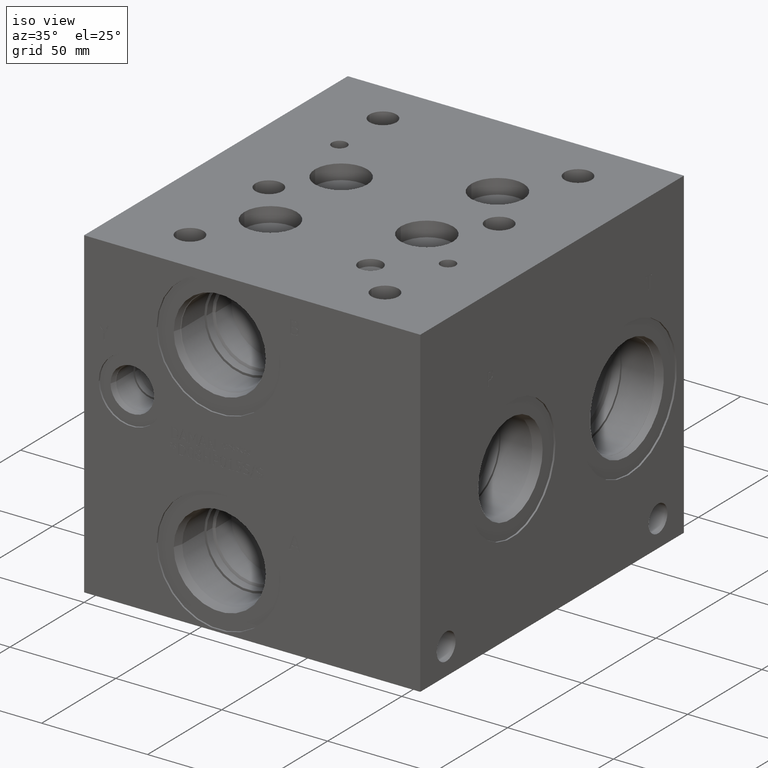
[diagram: clean part render]
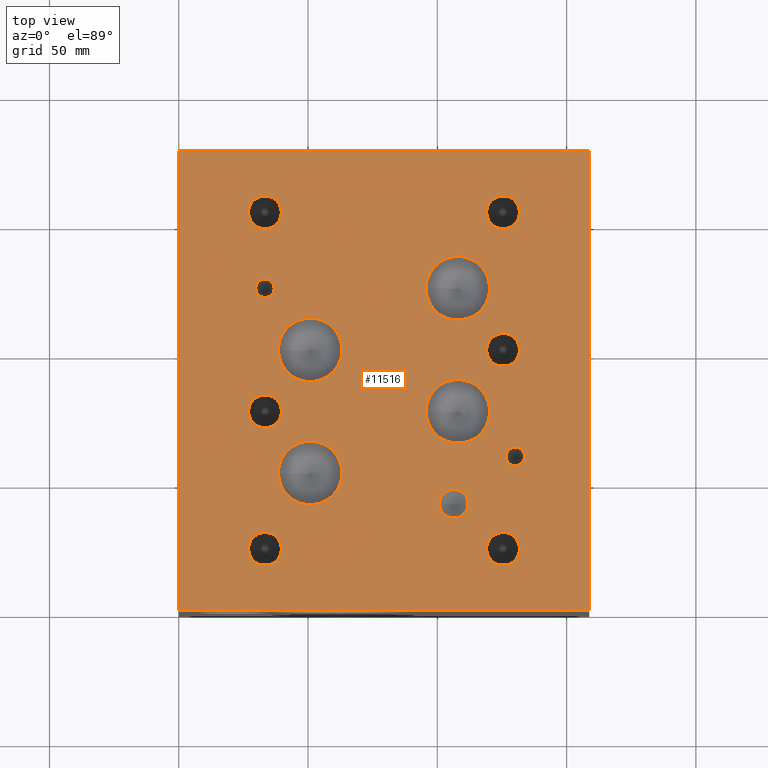
[diagram: tour spotlight — one face highlighted and labeled with its STEP entity id]
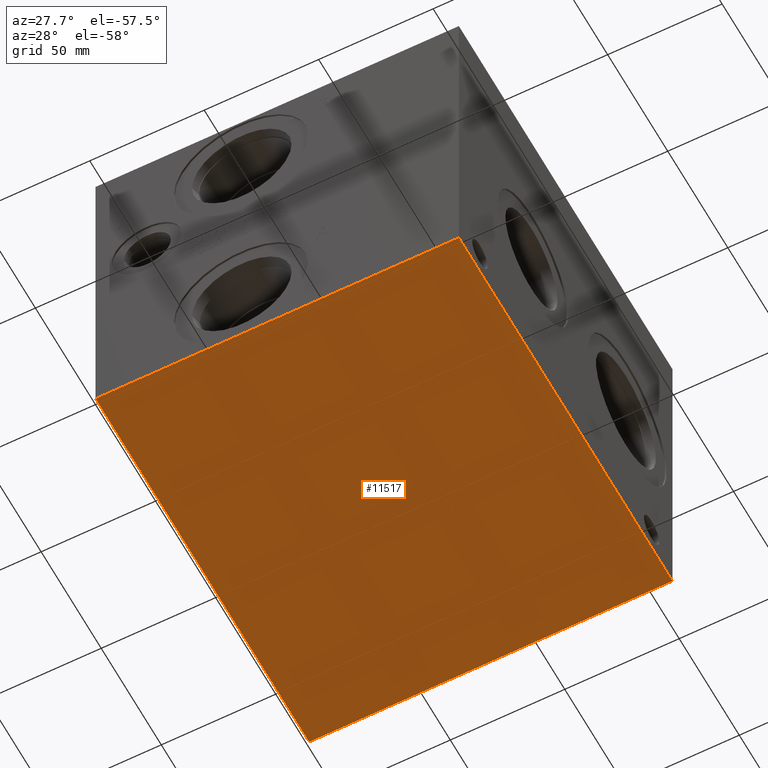
[diagram: tour spotlight — one face highlighted and labeled with its STEP entity id]
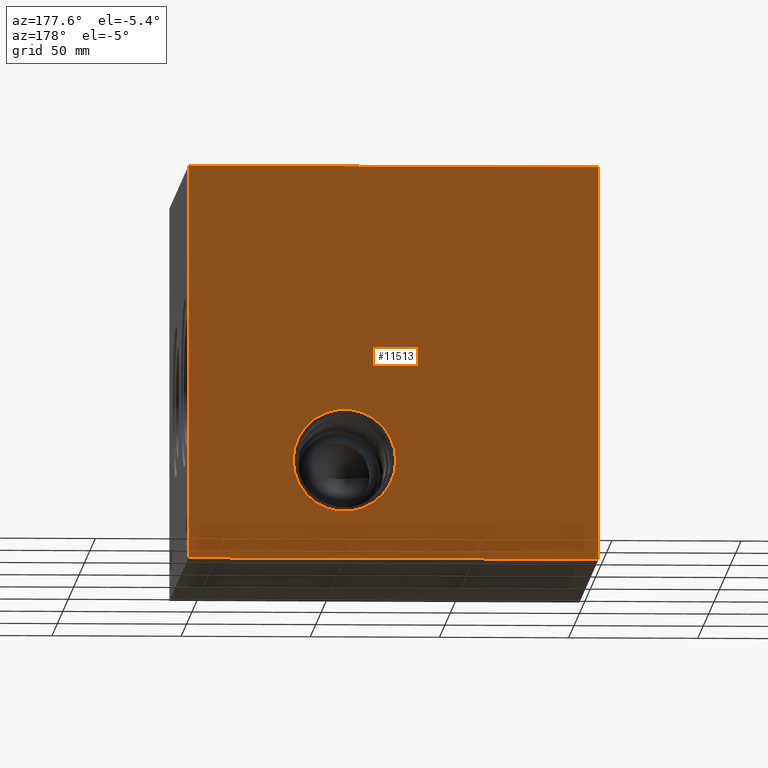
[diagram: tour spotlight — one face highlighted and labeled with its STEP entity id]
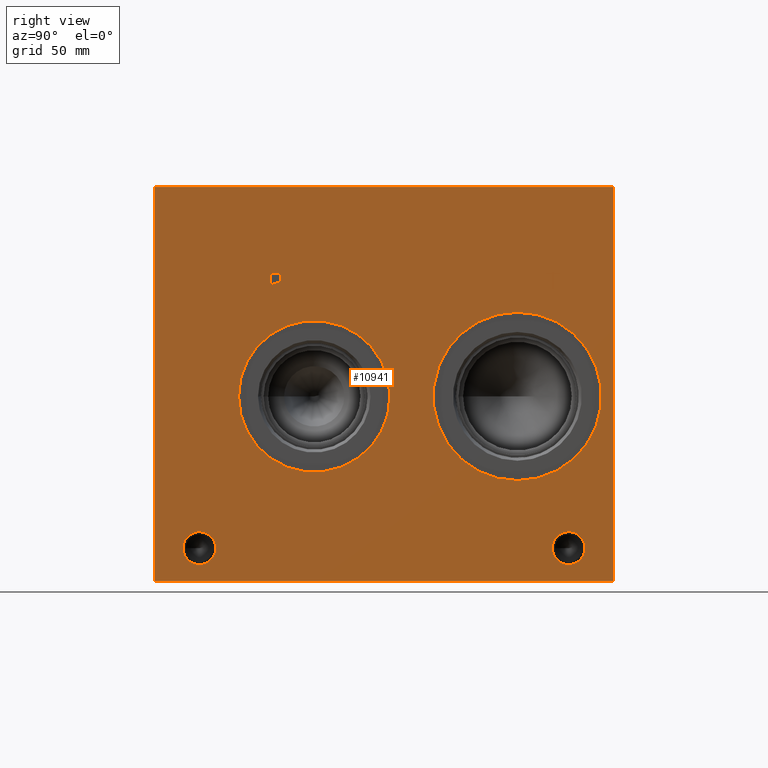
[diagram: tour spotlight — one face highlighted and labeled with its STEP entity id]
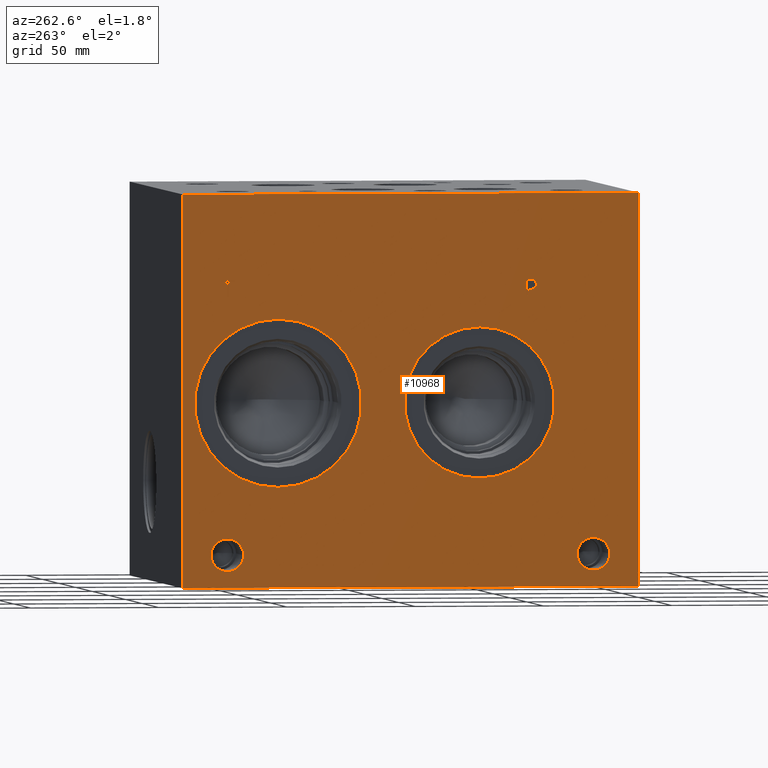
[diagram: tour spotlight — one face highlighted and labeled with its STEP entity id]
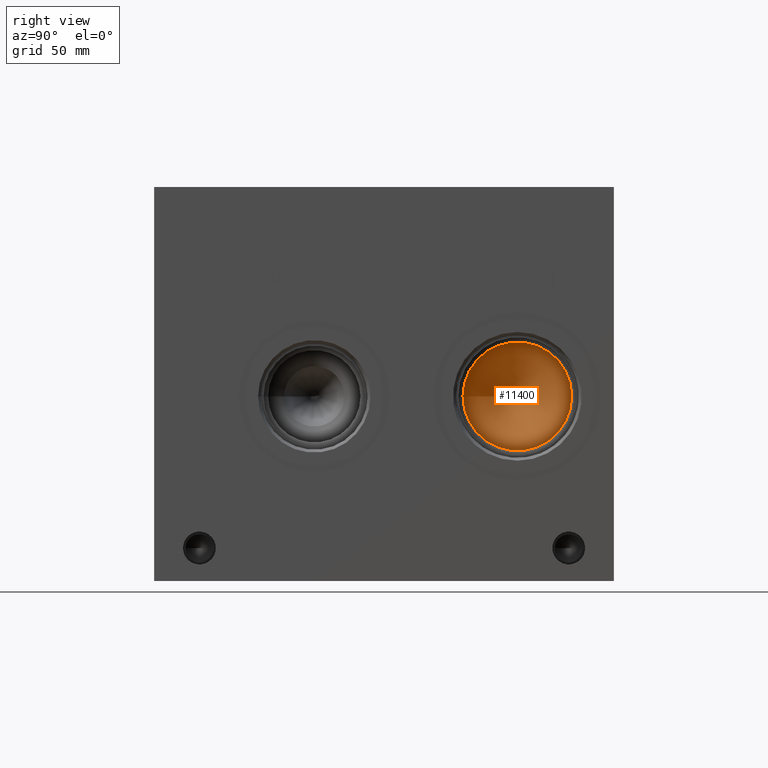
[diagram: tour spotlight — one face highlighted and labeled with its STEP entity id]
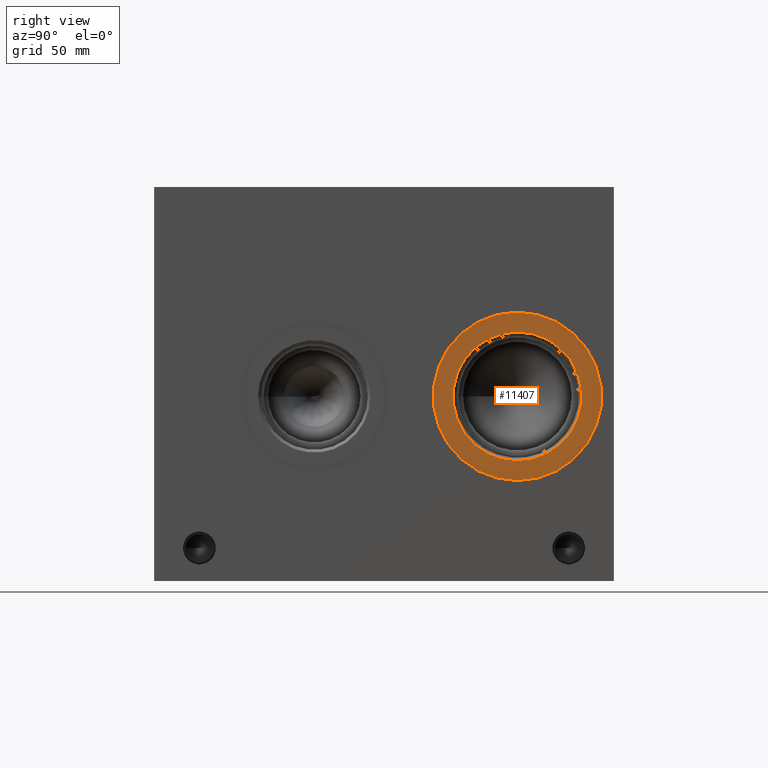
[diagram: tour spotlight — one face highlighted and labeled with its STEP entity id]
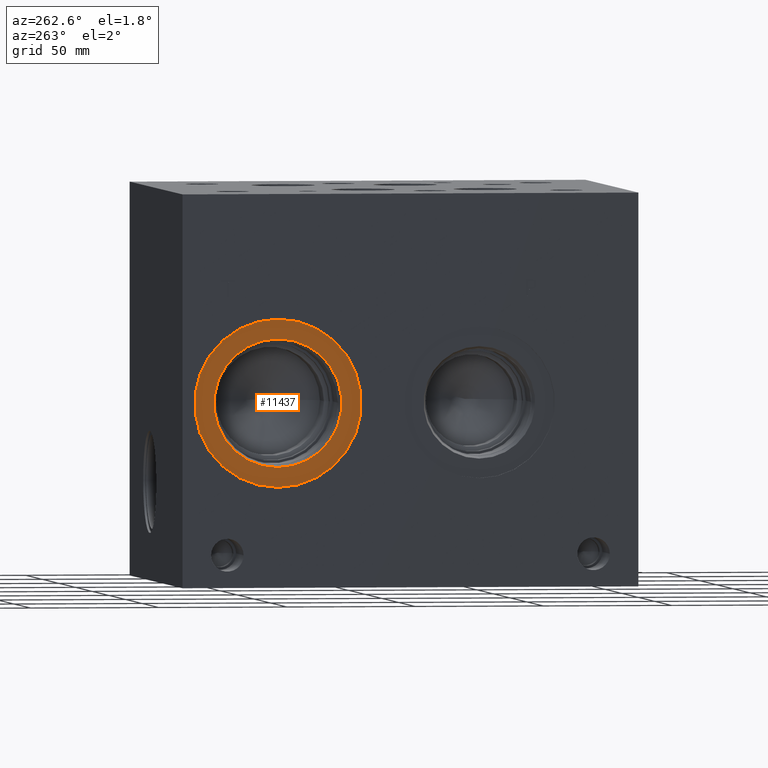
[diagram: tour spotlight — one face highlighted and labeled with its STEP entity id]
A machine part: a face-by-face anatomy tour. The part has 594 B-rep faces; the first image is the clean iso view, then the 8 largest visible faces are spotlighted one at a time (largest first), each with its STEP entity span.

Face 1 — top view, entity #11516. In plain terms, the highlighted planar face has unit normal (0, 0, 1).
Definition (entity closure, byte-faithful):
#316=CIRCLE('',#12127,5.55625);
#317=CIRCLE('',#12128,5.55625);
#320=CIRCLE('',#12133,12.3063);
#321=CIRCLE('',#12134,12.3063);
#324=CIRCLE('',#12139,12.3063);
#325=CIRCLE('',#12140,12.3063);
#328=CIRCLE('',#12145,12.3063);
#329=CIRCLE('',#12146,12.3063);
#332=CIRCLE('',#12151,12.3063);
#333=CIRCLE('',#12152,12.3063);
#336=CIRCLE('',#12157,3.5687);
#337=CIRCLE('',#12158,3.5687);
#340=CIRCLE('',#12163,3.5687);
#341=CIRCLE('',#12164,3.5687);
#347=CIRCLE('',#12173,6.35);
#348=CIRCLE('',#12174,6.35);
#354=CIRCLE('',#12184,6.35);
#355=CIRCLE('',#12185,6.35);
#361=CIRCLE('',#12195,6.35);
#362=CIRCLE('',#12196,6.35);
#368=CIRCLE('',#12206,6.35);
#369=CIRCLE('',#12207,6.35);
#375=CIRCLE('',#12217,6.35);
#376=CIRCLE('',#12218,6.35);
#382=CIRCLE('',#12228,6.35);
#383=CIRCLE('',#12229,6.35);
#465=FACE_BOUND('',#2081,.T.);
#466=FACE_BOUND('',#2082,.T.);
#467=FACE_BOUND('',#2083,.T.);
#468=FACE_BOUND('',#2084,.T.);
#469=FACE_BOUND('',#2085,.T.);
#470=FACE_BOUND('',#2086,.T.);
#471=FACE_BOUND('',#2087,.T.);
#472=FACE_BOUND('',#2088,.T.);
#473=FACE_BOUND('',#2089,.T.);
#474=FACE_BOUND('',#2090,.T.);
#475=FACE_BOUND('',#2091,.T.);
#476=FACE_BOUND('',#2092,.T.);
#477=FACE_BOUND('',#2093,.T.);
#811=PLANE('',#12235);
#1405=FACE_OUTER_BOUND('',#2080,.T.);
#2080=EDGE_LOOP('',(#10315,#10316,#10317,#10318));
#2081=EDGE_LOOP('',(#10319,#10320));
#2082=EDGE_LOOP('',(#10321,#10322));
#2083=EDGE_LOOP('',(#10323,#10324));
#2084=EDGE_LOOP('',(#10325,#10326));
#2085=EDGE_LOOP('',(#10327,#10328));
#2086=EDGE_LOOP('',(#10329,#10330));
#2087=EDGE_LOOP('',(#10331,#10332));
#2088=EDGE_LOOP('',(#10333,#10334));
#2089=EDGE_LOOP('',(#10335,#10336));
#2090=EDGE_LOOP('',(#10337,#10338));
#2091=EDGE_LOOP('',(#10339,#10340));
#2092=EDGE_LOOP('',(#10341,#10342));
#2093=EDGE_LOOP('',(#10343,#10344));
#2129=LINE('',#14909,#3180);
#2189=LINE('',#15184,#3240);
#2546=LINE('',#17710,#3597);
#3145=LINE('',#19833,#4196);
#3180=VECTOR('',#12293,10.);
#3240=VECTOR('',#12407,10.);
#3597=VECTOR('',#12974,10.);
#4196=VECTOR('',#14691,10.);
#4517=VERTEX_POINT('',#14906);
#4518=VERTEX_POINT('',#14908);
#4577=VERTEX_POINT('',#15181);
#4578=VERTEX_POINT('',#15183);
#5496=VERTEX_POINT('',#19615);
#5497=VERTEX_POINT('',#19616);
#5501=VERTEX_POINT('',#19628);
#5502=VERTEX_POINT('',#19629);
#5506=VERTEX_POINT('',#19641);
#5507=VERTEX_POINT('',#19642);
#5511=VERTEX_POINT('',#19654);
#5512=VERTEX_POINT('',#19655);
#5516=VERTEX_POINT('',#19667);
#5517=VERTEX_POINT('',#19668);
#5521=VERTEX_POINT('',#19680);
#5522=VERTEX_POINT('',#19681);
#5526=VERTEX_POINT('',#19693);
#5527=VERTEX_POINT('',#19694);
#5534=VERTEX_POINT('',#19713);
#5535=VERTEX_POINT('',#19714);
#5542=VERTEX_POINT('',#19735);
#5543=VERTEX_POINT('',#19736);
#5550=VERTEX_POINT('',#19757);
#5551=VERTEX_POINT('',#19758);
#5558=VERTEX_POINT('',#19779);
#5559=VERTEX_POINT('',#19780);
#5566=VERTEX_POINT('',#19801);
#5567=VERTEX_POINT('',#19802);
#5574=VERTEX_POINT('',#19823);
#5575=VERTEX_POINT('',#19824);
#5626=EDGE_CURVE('',#4518,#4517,#2129,.T.);
#5710=EDGE_CURVE('',#4578,#4577,#2189,.T.);
#6285=EDGE_CURVE('',#4577,#4518,#2546,.T.);
#7066=EDGE_CURVE('',#5496,#5497,#316,.T.);
#7067=EDGE_CURVE('',#5497,#5496,#317,.T.);
#7072=EDGE_CURVE('',#5501,#5502,#320,.T.);
#7073=EDGE_CURVE('',#5502,#5501,#321,.T.);
#7078=EDGE_CURVE('',#5506,#5507,#324,.T.);
#7079=EDGE_CURVE('',#5507,#5506,#325,.T.);
#7084=EDGE_CURVE('',#5511,#5512,#328,.T.);
#7085=EDGE_CURVE('',#5512,#5511,#329,.T.);
#7090=EDGE_CURVE('',#5516,#5517,#332,.T.);
#7091=EDGE_CURVE('',#5517,#5516,#333,.T.);
#7096=EDGE_CURVE('',#5521,#5522,#336,.T.);
#7097=EDGE_CURVE('',#5522,#5521,#337,.T.);
#7102=EDGE_CURVE('',#5526,#5527,#340,.T.);
#7103=EDGE_CURVE('',#5527,#5526,#341,.T.);
#7111=EDGE_CURVE('',#5534,#5535,#347,.T.);
#7112=EDGE_CURVE('',#5535,#5534,#348,.T.);
#7121=EDGE_CURVE('',#5542,#5543,#354,.T.);
#7122=EDGE_CURVE('',#5543,#5542,#355,.T.);
#7131=EDGE_CURVE('',#5550,#5551,#361,.T.);
#7132=EDGE_CURVE('',#5551,#5550,#362,.T.);
#7141=EDGE_CURVE('',#5558,#5559,#368,.T.);
#7142=EDGE_CURVE('',#5559,#5558,#369,.T.);
#7151=EDGE_CURVE('',#5566,#5567,#375,.T.);
#7152=EDGE_CURVE('',#5567,#5566,#376,.T.);
#7161=EDGE_CURVE('',#5574,#5575,#382,.T.);
#7162=EDGE_CURVE('',#5575,#5574,#383,.T.);
#7166=EDGE_CURVE('',#4517,#4578,#3145,.T.);
#10315=ORIENTED_EDGE('',*,*,#6285,.T.);
#10316=ORIENTED_EDGE('',*,*,#5626,.T.);
#10317=ORIENTED_EDGE('',*,*,#7166,.T.);
#10318=ORIENTED_EDGE('',*,*,#5710,.T.);
#10319=ORIENTED_EDGE('',*,*,#7066,.T.);
#10320=ORIENTED_EDGE('',*,*,#7067,.T.);
#10321=ORIENTED_EDGE('',*,*,#7072,.T.);
#10322=ORIENTED_EDGE('',*,*,#7073,.T.);
#10323=ORIENTED_EDGE('',*,*,#7078,.T.);
#10324=ORIENTED_EDGE('',*,*,#7079,.T.);
#10325=ORIENTED_EDGE('',*,*,#7084,.T.);
#10326=ORIENTED_EDGE('',*,*,#7085,.T.);
#10327=ORIENTED_EDGE('',*,*,#7090,.T.);
#10328=ORIENTED_EDGE('',*,*,#7091,.T.);
#10329=ORIENTED_EDGE('',*,*,#7096,.T.);
#10330=ORIENTED_EDGE('',*,*,#7097,.T.);
#10331=ORIENTED_EDGE('',*,*,#7102,.T.);
#10332=ORIENTED_EDGE('',*,*,#7103,.T.);
#10333=ORIENTED_EDGE('',*,*,#7111,.T.);
#10334=ORIENTED_EDGE('',*,*,#7112,.T.);
#10335=ORIENTED_EDGE('',*,*,#7121,.T.);
#10336=ORIENTED_EDGE('',*,*,#7122,.T.);
#10337=ORIENTED_EDGE('',*,*,#7131,.T.);
#10338=ORIENTED_EDGE('',*,*,#7132,.T.);
#10339=ORIENTED_EDGE('',*,*,#7141,.T.);
#10340=ORIENTED_EDGE('',*,*,#7142,.T.);
#10341=ORIENTED_EDGE('',*,*,#7151,.T.);
#10342=ORIENTED_EDGE('',*,*,#7152,.T.);
#10343=ORIENTED_EDGE('',*,*,#7161,.T.);
#10344=ORIENTED_EDGE('',*,*,#7162,.T.);
#11516=ADVANCED_FACE('',(#1405,#465,#466,#467,#468,#469,#470,#471,#472,
#473,#474,#475,#476,#477),#811,.T.);
#12127=AXIS2_PLACEMENT_3D('',#19617,#14447,#14448);
#12128=AXIS2_PLACEMENT_3D('',#19618,#14449,#14450);
#12133=AXIS2_PLACEMENT_3D('',#19630,#14461,#14462);
#12134=AXIS2_PLACEMENT_3D('',#19631,#14463,#14464);
#12139=AXIS2_PLACEMENT_3D('',#19643,#14475,#14476);
#12140=AXIS2_PLACEMENT_3D('',#19644,#14477,#14478);
#12145=AXIS2_PLACEMENT_3D('',#19656,#14489,#14490);
#12146=AXIS2_PLACEMENT_3D('',#19657,#14491,#14492);
#12151=AXIS2_PLACEMENT_3D('',#19669,#14503,#14504);
#12152=AXIS2_PLACEMENT_3D('',#19670,#14505,#14506);
#12157=AXIS2_PLACEMENT_3D('',#19682,#14517,#14518);
#12158=AXIS2_PLACEMENT_3D('',#19683,#14519,#14520);
#12163=AXIS2_PLACEMENT_3D('',#19695,#14531,#14532);
#12164=AXIS2_PLACEMENT_3D('',#19696,#14533,#14534);
#12173=AXIS2_PLACEMENT_3D('',#19715,#14553,#14554);
#12174=AXIS2_PLACEMENT_3D('',#19716,#14555,#14556);
#12184=AXIS2_PLACEMENT_3D('',#19737,#14578,#14579);
#12185=AXIS2_PLACEMENT_3D('',#19738,#14580,#14581);
#12195=AXIS2_PLACEMENT_3D('',#19759,#14603,#14604);
#12196=AXIS2_PLACEMENT_3D('',#19760,#14605,#14606);
#12206=AXIS2_PLACEMENT_3D('',#19781,#14628,#14629);
#12207=AXIS2_PLACEMENT_3D('',#19782,#14630,#14631);
#12217=AXIS2_PLACEMENT_3D('',#19803,#14653,#14654);
#12218=AXIS2_PLACEMENT_3D('',#19804,#14655,#14656);
#12228=AXIS2_PLACEMENT_3D('',#19825,#14678,#14679);
#12229=AXIS2_PLACEMENT_3D('',#19826,#14680,#14681);
#12235=AXIS2_PLACEMENT_3D('',#19836,#14696,#14697);
#12293=DIRECTION('',(0.,1.,0.));
#12407=DIRECTION('',(0.,-1.,0.));
#12974=DIRECTION('',(1.,0.,0.));
#14447=DIRECTION('center_axis',(0.,0.,-1.));
#14448=DIRECTION('ref_axis',(1.,0.,0.));
#14449=DIRECTION('center_axis',(0.,0.,-1.));
#14450=DIRECTION('ref_axis',(1.,0.,0.));
#14461=DIRECTION('center_axis',(0.,0.,-1.));
#14462=DIRECTION('ref_axis',(1.,0.,0.));
#14463=DIRECTION('center_axis',(0.,0.,-1.));
#14464=DIRECTION('ref_axis',(1.,0.,0.));
#14475=DIRECTION('center_axis',(0.,0.,-1.));
#14476=DIRECTION('ref_axis',(1.,0.,0.));
#14477=DIRECTION('center_axis',(0.,0.,-1.));
#14478=DIRECTION('ref_axis',(1.,0.,0.));
#14489=DIRECTION('center_axis',(0.,0.,-1.));
#14490=DIRECTION('ref_axis',(1.,0.,0.));
#14491=DIRECTION('center_axis',(0.,0.,-1.));
#14492=DIRECTION('ref_axis',(1.,0.,0.));
#14503=DIRECTION('center_axis',(0.,0.,-1.));
#14504=DIRECTION('ref_axis',(1.,0.,0.));
#14505=DIRECTION('center_axis',(0.,0.,-1.));
#14506=DIRECTION('ref_axis',(1.,0.,0.));
#14517=DIRECTION('center_axis',(0.,0.,-1.));
#14518=DIRECTION('ref_axis',(1.,0.,0.));
#14519=DIRECTION('center_axis',(0.,0.,-1.));
#14520=DIRECTION('ref_axis',(1.,0.,0.));
#14531=DIRECTION('center_axis',(0.,0.,-1.));
#14532=DIRECTION('ref_axis',(1.,0.,0.));
#14533=DIRECTION('center_axis',(0.,0.,-1.));
#14534=DIRECTION('ref_axis',(1.,0.,0.));
#14553=DIRECTION('center_axis',(0.,0.,-1.));
#14554=DIRECTION('ref_axis',(1.,0.,0.));
#14555=DIRECTION('center_axis',(0.,0.,-1.));
#14556=DIRECTION('ref_axis',(1.,0.,0.));
#14578=DIRECTION('center_axis',(0.,0.,-1.));
#14579=DIRECTION('ref_axis',(1.,0.,0.));
#14580=DIRECTION('center_axis',(0.,0.,-1.));
#14581=DIRECTION('ref_axis',(1.,0.,0.));
#14603=DIRECTION('center_axis',(0.,0.,-1.));
#14604=DIRECTION('ref_axis',(1.,0.,0.));
#14605=DIRECTION('center_axis',(0.,0.,-1.));
#14606=DIRECTION('ref_axis',(1.,0.,0.));
#14628=DIRECTION('center_axis',(0.,0.,-1.));
#14629=DIRECTION('ref_axis',(1.,0.,0.));
#14630=DIRECTION('center_axis',(0.,0.,-1.));
#14631=DIRECTION('ref_axis',(1.,0.,0.));
#14653=DIRECTION('center_axis',(0.,0.,-1.));
#14654=DIRECTION('ref_axis',(1.,0.,0.));
#14655=DIRECTION('center_axis',(0.,0.,-1.));
#14656=DIRECTION('ref_axis',(1.,0.,0.));
#14678=DIRECTION('center_axis',(0.,0.,-1.));
#14679=DIRECTION('ref_axis',(1.,0.,0.));
#14680=DIRECTION('center_axis',(0.,0.,-1.));
#14681=DIRECTION('ref_axis',(1.,0.,0.));
#14691=DIRECTION('',(-1.,0.,0.));
#14696=DIRECTION('center_axis',(0.,0.,1.));
#14697=DIRECTION('ref_axis',(1.,0.,0.));
#14906=CARTESIAN_POINT('',(158.75,177.8,152.4));
#14908=CARTESIAN_POINT('',(158.75,0.,152.4));
#14909=CARTESIAN_POINT('',(158.75,0.,152.4));
#15181=CARTESIAN_POINT('',(0.,0.,152.4));
#15183=CARTESIAN_POINT('',(0.,177.8,152.4));
#15184=CARTESIAN_POINT('',(0.,177.8,152.4));
#17710=CARTESIAN_POINT('',(0.,0.,152.4));
#19615=CARTESIAN_POINT('',(111.91875,41.26992,152.4));
#19616=CARTESIAN_POINT('',(100.80625,41.26992,152.4));
#19617=CARTESIAN_POINT('Origin',(106.3625,41.26992,152.4));
#19618=CARTESIAN_POINT('Origin',(106.3625,41.26992,152.4));
#19628=CARTESIAN_POINT('',(63.1063,100.8126,152.4));
#19629=CARTESIAN_POINT('',(38.4937,100.8126,152.4));
#19630=CARTESIAN_POINT('Origin',(50.8,100.8126,152.4));
#19631=CARTESIAN_POINT('Origin',(50.8,100.8126,152.4));
#19641=CARTESIAN_POINT('',(120.2563,76.9874,152.4));
#19642=CARTESIAN_POINT('',(95.6437,76.9874,152.4));
#19643=CARTESIAN_POINT('Origin',(107.95,76.9874,152.4));
#19644=CARTESIAN_POINT('Origin',(107.95,76.9874,152.4));
#19654=CARTESIAN_POINT('',(120.2563,124.6124,152.4));
#19655=CARTESIAN_POINT('',(95.6437,124.6124,152.4));
#19656=CARTESIAN_POINT('Origin',(107.95,124.6124,152.4));
#19657=CARTESIAN_POINT('Origin',(107.95,124.6124,152.4));
#19667=CARTESIAN_POINT('',(63.1063,53.1622,152.4));
#19668=CARTESIAN_POINT('',(38.4937,53.1622,152.4));
#19669=CARTESIAN_POINT('Origin',(50.8,53.1622,152.4));
#19670=CARTESIAN_POINT('Origin',(50.8,53.1622,152.4));
#19680=CARTESIAN_POINT('',(36.8935,124.6124,152.4));
#19681=CARTESIAN_POINT('',(29.7561,124.6124,152.4));
#19682=CARTESIAN_POINT('Origin',(33.3248,124.6124,152.4));
#19683=CARTESIAN_POINT('Origin',(33.3248,124.6124,152.4));
#19693=CARTESIAN_POINT('',(133.7437,59.5376,152.4));
#19694=CARTESIAN_POINT('',(126.6063,59.5376,152.4));
#19695=CARTESIAN_POINT('Origin',(130.175,59.5376,152.4));
#19696=CARTESIAN_POINT('Origin',(130.175,59.5376,152.4));
#19713=CARTESIAN_POINT('',(39.6875,23.80742,152.4));
#19714=CARTESIAN_POINT('',(26.9875,23.80742,152.4));
#19715=CARTESIAN_POINT('Origin',(33.3375,23.80742,152.4));
#19716=CARTESIAN_POINT('Origin',(33.3375,23.80742,152.4));
#19735=CARTESIAN_POINT('',(131.7752,100.7999,152.4));
#19736=CARTESIAN_POINT('',(119.0752,100.7999,152.4));
#19737=CARTESIAN_POINT('Origin',(125.4252,100.7999,152.4));
#19738=CARTESIAN_POINT('Origin',(125.4252,100.7999,152.4));
#19757=CARTESIAN_POINT('',(39.6748,153.9748,152.4));
#19758=CARTESIAN_POINT('',(26.9748,153.9748,152.4));
#19759=CARTESIAN_POINT('Origin',(33.3248,153.9748,152.4));
#19760=CARTESIAN_POINT('Origin',(33.3248,153.9748,152.4));
#19779=CARTESIAN_POINT('',(131.7625,153.97988,152.4));
#19780=CARTESIAN_POINT('',(119.0625,153.97988,152.4));
#19781=CARTESIAN_POINT('Origin',(125.4125,153.97988,152.4));
#19782=CARTESIAN_POINT('Origin',(125.4125,153.97988,152.4));
#19801=CARTESIAN_POINT('',(131.7625,23.80742,152.4));
#19802=CARTESIAN_POINT('',(119.0625,23.80742,152.4));
#19803=CARTESIAN_POINT('Origin',(125.4125,23.80742,152.4));
#19804=CARTESIAN_POINT('Origin',(125.4125,23.80742,152.4));
#19823=CARTESIAN_POINT('',(39.7002,76.9874,152.4));
#19824=CARTESIAN_POINT('',(27.0002,76.9874,152.4));
#19825=CARTESIAN_POINT('Origin',(33.3502,76.9874,152.4));
#19826=CARTESIAN_POINT('Origin',(33.3502,76.9874,152.4));
#19833=CARTESIAN_POINT('',(158.75,177.8,152.4));
#19836=CARTESIAN_POINT('Origin',(79.375,88.9,152.4));

Face 2 — auxiliary view, entity #11517. In plain terms, the highlighted planar face has unit normal (0, 0, 1).
Definition (entity closure, byte-faithful):
#812=PLANE('',#12236);
#1406=FACE_OUTER_BOUND('',#2094,.T.);
#2094=EDGE_LOOP('',(#10345,#10346,#10347,#10348));
#2127=LINE('',#14905,#3178);
#2187=LINE('',#15180,#3238);
#2545=LINE('',#17709,#3596);
#3144=LINE('',#19832,#4195);
#3178=VECTOR('',#12291,10.);
#3238=VECTOR('',#12405,10.);
#3596=VECTOR('',#12973,10.);
#4195=VECTOR('',#14690,10.);
#4515=VERTEX_POINT('',#14903);
#4516=VERTEX_POINT('',#14904);
#4575=VERTEX_POINT('',#15178);
#4576=VERTEX_POINT('',#15179);
#5624=EDGE_CURVE('',#4515,#4516,#2127,.T.);
#5708=EDGE_CURVE('',#4575,#4576,#2187,.T.);
#6284=EDGE_CURVE('',#4576,#4515,#2545,.T.);
#7165=EDGE_CURVE('',#4516,#4575,#3144,.T.);
#10345=ORIENTED_EDGE('',*,*,#6284,.F.);
#10346=ORIENTED_EDGE('',*,*,#5708,.F.);
#10347=ORIENTED_EDGE('',*,*,#7165,.F.);
#10348=ORIENTED_EDGE('',*,*,#5624,.F.);
#11517=ADVANCED_FACE('',(#1406),#812,.F.);
#12236=AXIS2_PLACEMENT_3D('',#19837,#14698,#14699);
#12291=DIRECTION('',(0.,1.,0.));
#12405=DIRECTION('',(0.,-1.,0.));
#12973=DIRECTION('',(1.,0.,0.));
#14690=DIRECTION('',(-1.,0.,0.));
#14698=DIRECTION('center_axis',(0.,0.,1.));
#14699=DIRECTION('ref_axis',(1.,0.,0.));
#14903=CARTESIAN_POINT('',(158.75,0.,0.));
#14904=CARTESIAN_POINT('',(158.75,177.8,0.));
#14905=CARTESIAN_POINT('',(158.75,0.,0.));
#15178=CARTESIAN_POINT('',(0.,177.8,0.));
#15179=CARTESIAN_POINT('',(0.,0.,0.));
#15180=CARTESIAN_POINT('',(0.,177.8,0.));
#17709=CARTESIAN_POINT('',(0.,0.,0.));
#19832=CARTESIAN_POINT('',(158.75,177.8,0.));
#19837=CARTESIAN_POINT('Origin',(79.375,88.9,0.));

Face 3 — auxiliary view, entity #11513. In plain terms, the highlighted planar face has unit normal (0, 1, 0).
Definition (entity closure, byte-faithful):
#152=CIRCLE('',#11857,19.8374);
#153=CIRCLE('',#11858,19.8374);
#464=FACE_BOUND('',#2077,.T.);
#808=PLANE('',#12232);
#1402=FACE_OUTER_BOUND('',#2076,.T.);
#2076=EDGE_LOOP('',(#10295,#10296,#10297,#10298));
#2077=EDGE_LOOP('',(#10299,#10300));
#2128=LINE('',#14907,#3179);
#2190=LINE('',#15185,#3241);
#3144=LINE('',#19832,#4195);
#3145=LINE('',#19833,#4196);
#3179=VECTOR('',#12292,10.);
#3241=VECTOR('',#12408,10.);
#4195=VECTOR('',#14690,10.);
#4196=VECTOR('',#14691,10.);
#4516=VERTEX_POINT('',#14904);
#4517=VERTEX_POINT('',#14906);
#4575=VERTEX_POINT('',#15178);
#4578=VERTEX_POINT('',#15183);
#5319=VERTEX_POINT('',#19083);
#5320=VERTEX_POINT('',#19084);
#5625=EDGE_CURVE('',#4516,#4517,#2128,.T.);
#5711=EDGE_CURVE('',#4575,#4578,#2190,.T.);
#6817=EDGE_CURVE('',#5319,#5320,#152,.T.);
#6818=EDGE_CURVE('',#5320,#5319,#153,.T.);
#7165=EDGE_CURVE('',#4516,#4575,#3144,.T.);
#7166=EDGE_CURVE('',#4517,#4578,#3145,.T.);
#10295=ORIENTED_EDGE('',*,*,#7165,.T.);
#10296=ORIENTED_EDGE('',*,*,#5711,.T.);
#10297=ORIENTED_EDGE('',*,*,#7166,.F.);
#10298=ORIENTED_EDGE('',*,*,#5625,.F.);
#10299=ORIENTED_EDGE('',*,*,#6817,.T.);
#10300=ORIENTED_EDGE('',*,*,#6818,.T.);
#11513=ADVANCED_FACE('',(#1402,#464),#808,.T.);
#11857=AXIS2_PLACEMENT_3D('',#19085,#13822,#13823);
#11858=AXIS2_PLACEMENT_3D('',#19086,#13824,#13825);
#12232=AXIS2_PLACEMENT_3D('',#19831,#14688,#14689);
#12292=DIRECTION('',(0.,0.,1.));
#12408=DIRECTION('',(0.,0.,1.));
#13822=DIRECTION('center_axis',(0.,-1.,0.));
#13823=DIRECTION('ref_axis',(1.,0.,0.));
#13824=DIRECTION('center_axis',(0.,-1.,0.));
#13825=DIRECTION('ref_axis',(1.,0.,0.));
#14688=DIRECTION('center_axis',(0.,1.,0.));
#14689=DIRECTION('ref_axis',(-1.,0.,0.));
#14690=DIRECTION('',(-1.,0.,0.));
#14691=DIRECTION('',(-1.,0.,0.));
#14904=CARTESIAN_POINT('',(158.75,177.8,0.));
#14906=CARTESIAN_POINT('',(158.75,177.8,152.4));
#14907=CARTESIAN_POINT('',(158.75,177.8,0.));
#15178=CARTESIAN_POINT('',(0.,177.8,0.));
#15183=CARTESIAN_POINT('',(0.,177.8,152.4));
#15185=CARTESIAN_POINT('',(0.,177.8,0.));
#19083=CARTESIAN_POINT('',(118.2624,177.8,38.1));
#19084=CARTESIAN_POINT('',(78.5876,177.8,38.1));
#19085=CARTESIAN_POINT('Origin',(98.425,177.8,38.1));
#19086=CARTESIAN_POINT('Origin',(98.425,177.8,38.1));
#19831=CARTESIAN_POINT('Origin',(158.75,177.8,0.));
#19832=CARTESIAN_POINT('',(158.75,177.8,0.));
#19833=CARTESIAN_POINT('',(158.75,177.8,152.4));

Face 4 — right view, entity #10941. In plain terms, the highlighted planar face has unit normal (1, 0, 0).
Definition (entity closure, byte-faithful):
#130=CIRCLE('',#11542,32.5628);
#131=CIRCLE('',#11543,32.5628);
#132=CIRCLE('',#11544,29.2862);
#133=CIRCLE('',#11545,29.2862);
#134=CIRCLE('',#11546,6.35);
#135=CIRCLE('',#11547,6.35);
#136=CIRCLE('',#11548,6.35);
#137=CIRCLE('',#11549,6.35);
#385=FACE_BOUND('',#1426,.T.);
#386=FACE_BOUND('',#1427,.T.);
#387=FACE_BOUND('',#1428,.T.);
#388=FACE_BOUND('',#1429,.T.);
#389=FACE_BOUND('',#1430,.T.);
#390=FACE_BOUND('',#1431,.T.);
#487=PLANE('',#11541);
#830=FACE_OUTER_BOUND('',#1425,.T.);
#1425=EDGE_LOOP('',(#7247,#7248,#7249,#7250));
#1426=EDGE_LOOP('',(#7251,#7252));
#1427=EDGE_LOOP('',(#7253,#7254));
#1428=EDGE_LOOP('',(#7255,#7256));
#1429=EDGE_LOOP('',(#7257,#7258));
#1430=EDGE_LOOP('',(#7259,#7260,#7261,#7262,#7263,#7264,#7265,#7266));
#1431=EDGE_LOOP('',(#7267,#7268,#7269,#7270,#7271,#7272,#7273,#7274,#7275));
#2111=LINE('',#14838,#3162);
#2114=LINE('',#14844,#3165);
#2117=LINE('',#14850,#3168);
#2120=LINE('',#14856,#3171);
#2123=LINE('',#14862,#3174);
#2127=LINE('',#14905,#3178);
#2128=LINE('',#14907,#3179);
#2129=LINE('',#14909,#3180);
#2130=LINE('',#14910,#3181);
#2131=LINE('',#14929,#3182);
#2132=LINE('',#14931,#3183);
#2133=LINE('',#14933,#3184);
#2134=LINE('',#14935,#3185);
#2135=LINE('',#14937,#3186);
#2136=LINE('',#14939,#3187);
#2137=LINE('',#14941,#3188);
#2138=LINE('',#14942,#3189);
#3162=VECTOR('',#12263,10.);
#3165=VECTOR('',#12268,10.);
#3168=VECTOR('',#12273,10.);
#3171=VECTOR('',#12278,10.);
#3174=VECTOR('',#12283,10.);
#3178=VECTOR('',#12291,10.);
#3179=VECTOR('',#12292,10.);
#3180=VECTOR('',#12293,10.);
#3181=VECTOR('',#12294,10.);
#3182=VECTOR('',#12311,10.);
#3183=VECTOR('',#12312,10.);
#3184=VECTOR('',#12313,10.);
#3185=VECTOR('',#12314,10.);
#3186=VECTOR('',#12315,10.);
#3187=VECTOR('',#12316,10.);
#3188=VECTOR('',#12317,10.);
#3189=VECTOR('',#12318,10.);
#4205=B_SPLINE_CURVE_WITH_KNOTS('',2,(#14805,#14806,#14807,#14808),
 .UNSPECIFIED.,.F.,.F.,(3,1,3),(0.,1.,2.),.UNSPECIFIED.);
#4207=B_SPLINE_CURVE_WITH_KNOTS('',2,(#14826,#14827,#14828,#14829),
 .UNSPECIFIED.,.F.,.F.,(3,1,3),(0.,1.,2.),.UNSPECIFIED.);
#4209=B_SPLINE_CURVE_WITH_KNOTS('',2,(#14875,#14876,#14877,#14878),
 .UNSPECIFIED.,.F.,.F.,(3,1,3),(0.,1.,2.),.UNSPECIFIED.);
#4211=B_SPLINE_CURVE_WITH_KNOTS('',2,(#14893,#14894,#14895,#14896),
 .UNSPECIFIED.,.F.,.F.,(3,1,3),(0.,1.,2.),.UNSPECIFIED.);
#4497=VERTEX_POINT('',#14803);
#4498=VERTEX_POINT('',#14804);
#4501=VERTEX_POINT('',#14825);
#4503=VERTEX_POINT('',#14837);
#4505=VERTEX_POINT('',#14843);
#4507=VERTEX_POINT('',#14849);
#4509=VERTEX_POINT('',#14855);
#4511=VERTEX_POINT('',#14861);
#4513=VERTEX_POINT('',#14874);
#4515=VERTEX_POINT('',#14903);
#4516=VERTEX_POINT('',#14904);
#4517=VERTEX_POINT('',#14906);
#4518=VERTEX_POINT('',#14908);
#4519=VERTEX_POINT('',#14911);
#4520=VERTEX_POINT('',#14912);
#4521=VERTEX_POINT('',#14915);
#4522=VERTEX_POINT('',#14916);
#4523=VERTEX_POINT('',#14919);
#4524=VERTEX_POINT('',#14920);
#4525=VERTEX_POINT('',#14923);
#4526=VERTEX_POINT('',#14924);
#4527=VERTEX_POINT('',#14927);
#4528=VERTEX_POINT('',#14928);
#4529=VERTEX_POINT('',#14930);
#4530=VERTEX_POINT('',#14932);
#4531=VERTEX_POINT('',#14934);
#4532=VERTEX_POINT('',#14936);
#4533=VERTEX_POINT('',#14938);
#4534=VERTEX_POINT('',#14940);
#5597=EDGE_CURVE('',#4497,#4498,#4205,.T.);
#5601=EDGE_CURVE('',#4501,#4497,#4207,.T.);
#5604=EDGE_CURVE('',#4503,#4501,#2111,.T.);
#5607=EDGE_CURVE('',#4505,#4503,#2114,.T.);
#5610=EDGE_CURVE('',#4507,#4505,#2117,.T.);
#5613=EDGE_CURVE('',#4509,#4507,#2120,.T.);
#5616=EDGE_CURVE('',#4511,#4509,#2123,.T.);
#5619=EDGE_CURVE('',#4513,#4511,#4209,.T.);
#5622=EDGE_CURVE('',#4498,#4513,#4211,.T.);
#5624=EDGE_CURVE('',#4515,#4516,#2127,.T.);
#5625=EDGE_CURVE('',#4516,#4517,#2128,.T.);
#5626=EDGE_CURVE('',#4518,#4517,#2129,.T.);
#5627=EDGE_CURVE('',#4515,#4518,#2130,.T.);
#5628=EDGE_CURVE('',#4519,#4520,#130,.T.);
#5629=EDGE_CURVE('',#4520,#4519,#131,.T.);
#5630=EDGE_CURVE('',#4521,#4522,#132,.T.);
#5631=EDGE_CURVE('',#4522,#4521,#133,.T.);
#5632=EDGE_CURVE('',#4523,#4524,#134,.T.);
#5633=EDGE_CURVE('',#4524,#4523,#135,.T.);
#5634=EDGE_CURVE('',#4525,#4526,#136,.T.);
#5635=EDGE_CURVE('',#4526,#4525,#137,.T.);
#5636=EDGE_CURVE('',#4527,#4528,#2131,.T.);
#5637=EDGE_CURVE('',#4528,#4529,#2132,.T.);
#5638=EDGE_CURVE('',#4529,#4530,#2133,.T.);
#5639=EDGE_CURVE('',#4530,#4531,#2134,.T.);
#5640=EDGE_CURVE('',#4531,#4532,#2135,.T.);
#5641=EDGE_CURVE('',#4532,#4533,#2136,.T.);
#5642=EDGE_CURVE('',#4533,#4534,#2137,.T.);
#5643=EDGE_CURVE('',#4534,#4527,#2138,.T.);
#7247=ORIENTED_EDGE('',*,*,#5624,.T.);
#7248=ORIENTED_EDGE('',*,*,#5625,.T.);
#7249=ORIENTED_EDGE('',*,*,#5626,.F.);
#7250=ORIENTED_EDGE('',*,*,#5627,.F.);
#7251=ORIENTED_EDGE('',*,*,#5628,.T.);
#7252=ORIENTED_EDGE('',*,*,#5629,.T.);
#7253=ORIENTED_EDGE('',*,*,#5630,.T.);
#7254=ORIENTED_EDGE('',*,*,#5631,.T.);
#7255=ORIENTED_EDGE('',*,*,#5632,.T.);
#7256=ORIENTED_EDGE('',*,*,#5633,.T.);
#7257=ORIENTED_EDGE('',*,*,#5634,.T.);
#7258=ORIENTED_EDGE('',*,*,#5635,.T.);
#7259=ORIENTED_EDGE('',*,*,#5636,.T.);
#7260=ORIENTED_EDGE('',*,*,#5637,.T.);
#7261=ORIENTED_EDGE('',*,*,#5638,.T.);
#7262=ORIENTED_EDGE('',*,*,#5639,.T.);
#7263=ORIENTED_EDGE('',*,*,#5640,.T.);
#7264=ORIENTED_EDGE('',*,*,#5641,.T.);
#7265=ORIENTED_EDGE('',*,*,#5642,.T.);
#7266=ORIENTED_EDGE('',*,*,#5643,.T.);
#7267=ORIENTED_EDGE('',*,*,#5597,.T.);
#7268=ORIENTED_EDGE('',*,*,#5622,.T.);
#7269=ORIENTED_EDGE('',*,*,#5619,.T.);
#7270=ORIENTED_EDGE('',*,*,#5616,.T.);
#7271=ORIENTED_EDGE('',*,*,#5613,.T.);
#7272=ORIENTED_EDGE('',*,*,#5610,.T.);
#7273=ORIENTED_EDGE('',*,*,#5607,.T.);
#7274=ORIENTED_EDGE('',*,*,#5604,.T.);
#7275=ORIENTED_EDGE('',*,*,#5601,.T.);
#10941=ADVANCED_FACE('',(#830,#385,#386,#387,#388,#389,#390),#487,.T.);
#11541=AXIS2_PLACEMENT_3D('',#14902,#12289,#12290);
#11542=AXIS2_PLACEMENT_3D('',#14913,#12295,#12296);
#11543=AXIS2_PLACEMENT_3D('',#14914,#12297,#12298);
#11544=AXIS2_PLACEMENT_3D('',#14917,#12299,#12300);
#11545=AXIS2_PLACEMENT_3D('',#14918,#12301,#12302);
#11546=AXIS2_PLACEMENT_3D('',#14921,#12303,#12304);
#11547=AXIS2_PLACEMENT_3D('',#14922,#12305,#12306);
#11548=AXIS2_PLACEMENT_3D('',#14925,#12307,#12308);
#11549=AXIS2_PLACEMENT_3D('',#14926,#12309,#12310);
#12263=DIRECTION('',(0.,1.,0.));
#12268=DIRECTION('',(0.,0.,1.));
#12273=DIRECTION('',(0.,-1.,0.));
#12278=DIRECTION('',(0.,0.,-1.));
#12283=DIRECTION('',(0.,-1.,0.));
#12289=DIRECTION('center_axis',(1.,0.,0.));
#12290=DIRECTION('ref_axis',(0.,1.,0.));
#12291=DIRECTION('',(0.,1.,0.));
#12292=DIRECTION('',(0.,0.,1.));
#12293=DIRECTION('',(0.,1.,0.));
#12294=DIRECTION('',(0.,0.,1.));
#12295=DIRECTION('center_axis',(-1.,0.,0.));
#12296=DIRECTION('ref_axis',(0.,0.,-1.));
#12297=DIRECTION('center_axis',(-1.,0.,0.));
#12298=DIRECTION('ref_axis',(0.,0.,-1.));
#12299=DIRECTION('center_axis',(-1.,0.,0.));
#12300=DIRECTION('ref_axis',(0.,1.,0.));
#12301=DIRECTION('center_axis',(-1.,0.,0.));
#12302=DIRECTION('ref_axis',(0.,1.,0.));
#12303=DIRECTION('center_axis',(-1.,0.,0.));
#12304=DIRECTION('ref_axis',(0.,1.,0.));
#12305=DIRECTION('center_axis',(-1.,0.,0.));
#12306=DIRECTION('ref_axis',(0.,1.,0.));
#12307=DIRECTION('center_axis',(-1.,0.,0.));
#12308=DIRECTION('ref_axis',(0.,1.,0.));
#12309=DIRECTION('center_axis',(-1.,0.,0.));
#12310=DIRECTION('ref_axis',(0.,1.,0.));
#12311=DIRECTION('',(0.,-1.,0.));
#12312=DIRECTION('',(0.,0.,1.));
#12313=DIRECTION('',(0.,-1.,0.));
#12314=DIRECTION('',(0.,0.,1.));
#12315=DIRECTION('',(0.,1.,0.));
#12316=DIRECTION('',(0.,0.,-1.));
#12317=DIRECTION('',(0.,-1.,0.));
#12318=DIRECTION('',(0.,0.,-1.));
#14803=CARTESIAN_POINT('',(158.75,48.2997672023594,118.780568143971));
#14804=CARTESIAN_POINT('',(158.75,49.056209654532,117.262537372604));
#14805=CARTESIAN_POINT('Ctrl Pts',(158.75,48.2997672023594,118.780568143971));
#14806=CARTESIAN_POINT('Ctrl Pts',(158.75,48.6548320268486,118.538712393956));
#14807=CARTESIAN_POINT('Ctrl Pts',(158.75,49.056209654532,117.792561675827));
#14808=CARTESIAN_POINT('Ctrl Pts',(158.75,49.056209654532,117.262537372604));
#14825=CARTESIAN_POINT('',(158.75,46.6376521543883,119.176799904633));
#14826=CARTESIAN_POINT('Ctrl Pts',(158.75,46.6376521543883,119.176799904633));
#14827=CARTESIAN_POINT('Ctrl Pts',(158.75,47.2036975267624,119.176799904633));
#14828=CARTESIAN_POINT('Ctrl Pts',(158.75,47.996161048086,118.991548691856));
#14829=CARTESIAN_POINT('Ctrl Pts',(158.75,48.2997672023594,118.780568143971));
#14837=CARTESIAN_POINT('',(158.75,45.0424333776978,119.176799904633));
#14838=CARTESIAN_POINT('',(158.75,22.5212166888489,119.176799904633));
#14843=CARTESIAN_POINT('',(158.75,45.0424333776978,112.8268));
#14844=CARTESIAN_POINT('',(158.75,45.0424333776978,56.4134));
#14849=CARTESIAN_POINT('',(158.75,45.8863555692373,112.8268));
#14850=CARTESIAN_POINT('',(158.75,22.9431777846186,112.8268));
#14855=CARTESIAN_POINT('',(158.75,45.8863555692373,115.193898829928));
#14856=CARTESIAN_POINT('',(158.75,45.8863555692373,57.5969494149639));
#14861=CARTESIAN_POINT('',(158.75,46.6016310852372,115.193898829928));
#14862=CARTESIAN_POINT('',(158.75,23.3008155426186,115.193898829928));
#14874=CARTESIAN_POINT('',(158.75,48.5004560162011,115.85256980869));
#14875=CARTESIAN_POINT('Ctrl Pts',(158.75,48.5004560162011,115.85256980869));
#14876=CARTESIAN_POINT('Ctrl Pts',(158.75,48.1711205268198,115.528380186331));
#14877=CARTESIAN_POINT('Ctrl Pts',(158.75,47.2808855320861,115.193898829928));
#14878=CARTESIAN_POINT('Ctrl Pts',(158.75,46.6016310852372,115.193898829928));
#14893=CARTESIAN_POINT('Ctrl Pts',(158.75,49.056209654532,117.262537372604));
#14894=CARTESIAN_POINT('Ctrl Pts',(158.75,49.056209654532,116.850868010877));
#14895=CARTESIAN_POINT('Ctrl Pts',(158.75,48.7628952343018,116.10986315977));
#14896=CARTESIAN_POINT('Ctrl Pts',(158.75,48.5004560162011,115.85256980869));
#14902=CARTESIAN_POINT('Origin',(158.75,0.,0.));
#14903=CARTESIAN_POINT('',(158.75,0.,0.));
#14904=CARTESIAN_POINT('',(158.75,177.8,0.));
#14905=CARTESIAN_POINT('',(158.75,0.,0.));
#14906=CARTESIAN_POINT('',(158.75,177.8,152.4));
#14907=CARTESIAN_POINT('',(158.75,177.8,0.));
#14908=CARTESIAN_POINT('',(158.75,0.,152.4));
#14909=CARTESIAN_POINT('',(158.75,0.,152.4));
#14910=CARTESIAN_POINT('',(158.75,0.,0.));
#14911=CARTESIAN_POINT('',(158.75,140.4874,38.862));
#14912=CARTESIAN_POINT('',(158.75,140.4874,103.9876));
#14913=CARTESIAN_POINT('Origin',(158.75,140.4874,71.4248));
#14914=CARTESIAN_POINT('Origin',(158.75,140.4874,71.4248));
#14915=CARTESIAN_POINT('',(158.75,91.2114,71.4248));
#14916=CARTESIAN_POINT('',(158.75,32.639,71.4248));
#14917=CARTESIAN_POINT('Origin',(158.75,61.9252,71.4248));
#14918=CARTESIAN_POINT('Origin',(158.75,61.9252,71.4248));
#14919=CARTESIAN_POINT('',(158.75,166.6748,12.7));
#14920=CARTESIAN_POINT('',(158.75,153.9748,12.7));
#14921=CARTESIAN_POINT('Origin',(158.75,160.3248,12.7));
#14922=CARTESIAN_POINT('Origin',(158.75,160.3248,12.7));
#14923=CARTESIAN_POINT('',(158.75,23.8252,12.7));
#14924=CARTESIAN_POINT('',(158.75,11.1252,12.7));
#14925=CARTESIAN_POINT('Origin',(158.75,17.4752,12.7));
#14926=CARTESIAN_POINT('Origin',(158.75,17.4752,12.7));
#14927=CARTESIAN_POINT('',(158.75,154.632565271453,112.8268));
#14928=CARTESIAN_POINT('',(158.75,153.788643079913,112.8268));
#14929=CARTESIAN_POINT('',(158.75,77.3162826357265,112.8268));
#14930=CARTESIAN_POINT('',(158.75,153.788643079913,118.425503319482));
#14931=CARTESIAN_POINT('',(158.75,153.788643079913,56.4134));
#14932=CARTESIAN_POINT('',(158.75,151.658254132978,118.425503319482));
#14933=CARTESIAN_POINT('',(158.75,76.8943215399567,118.425503319482));
#14934=CARTESIAN_POINT('',(158.75,151.658254132978,119.176799904633));
#14935=CARTESIAN_POINT('',(158.75,151.658254132978,59.2127516597408));
#14936=CARTESIAN_POINT('',(158.75,156.762954218388,119.176799904633));
#14937=CARTESIAN_POINT('',(158.75,75.8291270664892,119.176799904633));
#14938=CARTESIAN_POINT('',(158.75,156.762954218388,118.425503319482));
#14939=CARTESIAN_POINT('',(158.75,156.762954218388,59.5883999523163));
#14940=CARTESIAN_POINT('',(158.75,154.632565271453,118.425503319482));
#14941=CARTESIAN_POINT('',(158.75,78.381477109194,118.425503319482));
#14942=CARTESIAN_POINT('',(158.75,154.632565271453,59.2127516597408));

Face 5 — auxiliary view, entity #10968. In plain terms, the highlighted planar face has unit normal (-1, 0, 0).
Definition (entity closure, byte-faithful):
#138=CIRCLE('',#11569,32.5628);
#139=CIRCLE('',#11570,32.5628);
#140=CIRCLE('',#11571,29.2862);
#141=CIRCLE('',#11572,29.2862);
#142=CIRCLE('',#11573,6.35);
#143=CIRCLE('',#11574,6.35);
#144=CIRCLE('',#11575,6.35);
#145=CIRCLE('',#11576,6.35);
#392=FACE_BOUND('',#1460,.T.);
#393=FACE_BOUND('',#1461,.T.);
#394=FACE_BOUND('',#1462,.T.);
#395=FACE_BOUND('',#1463,.T.);
#396=FACE_BOUND('',#1464,.T.);
#397=FACE_BOUND('',#1465,.T.);
#506=PLANE('',#11568);
#857=FACE_OUTER_BOUND('',#1459,.T.);
#1459=EDGE_LOOP('',(#7396,#7397,#7398,#7399));
#1460=EDGE_LOOP('',(#7400,#7401));
#1461=EDGE_LOOP('',(#7402,#7403));
#1462=EDGE_LOOP('',(#7404,#7405));
#1463=EDGE_LOOP('',(#7406,#7407));
#1464=EDGE_LOOP('',(#7408,#7409,#7410,#7411,#7412,#7413,#7414,#7415));
#1465=EDGE_LOOP('',(#7416,#7417,#7418,#7419,#7420,#7421,#7422,#7423,#7424));
#2171=LINE('',#15113,#3222);
#2174=LINE('',#15119,#3225);
#2177=LINE('',#15125,#3228);
#2180=LINE('',#15131,#3231);
#2183=LINE('',#15137,#3234);
#2187=LINE('',#15180,#3238);
#2188=LINE('',#15182,#3239);
#2189=LINE('',#15184,#3240);
#2190=LINE('',#15185,#3241);
#2191=LINE('',#15204,#3242);
#2192=LINE('',#15206,#3243);
#2193=LINE('',#15208,#3244);
#2194=LINE('',#15210,#3245);
#2195=LINE('',#15212,#3246);
#2196=LINE('',#15214,#3247);
#2197=LINE('',#15216,#3248);
#2198=LINE('',#15217,#3249);
#3222=VECTOR('',#12377,10.);
#3225=VECTOR('',#12382,10.);
#3228=VECTOR('',#12387,10.);
#3231=VECTOR('',#12392,10.);
#3234=VECTOR('',#12397,10.);
#3238=VECTOR('',#12405,10.);
#3239=VECTOR('',#12406,10.);
#3240=VECTOR('',#12407,10.);
#3241=VECTOR('',#12408,10.);
#3242=VECTOR('',#12425,10.);
#3243=VECTOR('',#12426,10.);
#3244=VECTOR('',#12427,10.);
#3245=VECTOR('',#12428,10.);
#3246=VECTOR('',#12429,10.);
#3247=VECTOR('',#12430,10.);
#3248=VECTOR('',#12431,10.);
#3249=VECTOR('',#12432,10.);
#4221=B_SPLINE_CURVE_WITH_KNOTS('',2,(#15080,#15081,#15082,#15083),
 .UNSPECIFIED.,.F.,.F.,(3,1,3),(0.,1.,2.),.UNSPECIFIED.);
#4223=B_SPLINE_CURVE_WITH_KNOTS('',2,(#15101,#15102,#15103,#15104),
 .UNSPECIFIED.,.F.,.F.,(3,1,3),(0.,1.,2.),.UNSPECIFIED.);
#4225=B_SPLINE_CURVE_WITH_KNOTS('',2,(#15150,#15151,#15152,#15153),
 .UNSPECIFIED.,.F.,.F.,(3,1,3),(0.,1.,2.),.UNSPECIFIED.);
#4227=B_SPLINE_CURVE_WITH_KNOTS('',2,(#15168,#15169,#15170,#15171),
 .UNSPECIFIED.,.F.,.F.,(3,1,3),(0.,1.,2.),.UNSPECIFIED.);
#4557=VERTEX_POINT('',#15078);
#4558=VERTEX_POINT('',#15079);
#4561=VERTEX_POINT('',#15100);
#4563=VERTEX_POINT('',#15112);
#4565=VERTEX_POINT('',#15118);
#4567=VERTEX_POINT('',#15124);
#4569=VERTEX_POINT('',#15130);
#4571=VERTEX_POINT('',#15136);
#4573=VERTEX_POINT('',#15149);
#4575=VERTEX_POINT('',#15178);
#4576=VERTEX_POINT('',#15179);
#4577=VERTEX_POINT('',#15181);
#4578=VERTEX_POINT('',#15183);
#4579=VERTEX_POINT('',#15186);
#4580=VERTEX_POINT('',#15187);
#4581=VERTEX_POINT('',#15190);
#4582=VERTEX_POINT('',#15191);
#4583=VERTEX_POINT('',#15194);
#4584=VERTEX_POINT('',#15195);
#4585=VERTEX_POINT('',#15198);
#4586=VERTEX_POINT('',#15199);
#4587=VERTEX_POINT('',#15202);
#4588=VERTEX_POINT('',#15203);
#4589=VERTEX_POINT('',#15205);
#4590=VERTEX_POINT('',#15207);
#4591=VERTEX_POINT('',#15209);
#4592=VERTEX_POINT('',#15211);
#4593=VERTEX_POINT('',#15213);
#4594=VERTEX_POINT('',#15215);
#5681=EDGE_CURVE('',#4557,#4558,#4221,.T.);
#5685=EDGE_CURVE('',#4561,#4557,#4223,.T.);
#5688=EDGE_CURVE('',#4563,#4561,#2171,.T.);
#5691=EDGE_CURVE('',#4565,#4563,#2174,.T.);
#5694=EDGE_CURVE('',#4567,#4565,#2177,.T.);
#5697=EDGE_CURVE('',#4569,#4567,#2180,.T.);
#5700=EDGE_CURVE('',#4571,#4569,#2183,.T.);
#5703=EDGE_CURVE('',#4573,#4571,#4225,.T.);
#5706=EDGE_CURVE('',#4558,#4573,#4227,.T.);
#5708=EDGE_CURVE('',#4575,#4576,#2187,.T.);
#5709=EDGE_CURVE('',#4576,#4577,#2188,.T.);
#5710=EDGE_CURVE('',#4578,#4577,#2189,.T.);
#5711=EDGE_CURVE('',#4575,#4578,#2190,.T.);
#5712=EDGE_CURVE('',#4579,#4580,#138,.T.);
#5713=EDGE_CURVE('',#4580,#4579,#139,.T.);
#5714=EDGE_CURVE('',#4581,#4582,#140,.T.);
#5715=EDGE_CURVE('',#4582,#4581,#141,.T.);
#5716=EDGE_CURVE('',#4583,#4584,#142,.T.);
#5717=EDGE_CURVE('',#4584,#4583,#143,.T.);
#5718=EDGE_CURVE('',#4585,#4586,#144,.T.);
#5719=EDGE_CURVE('',#4586,#4585,#145,.T.);
#5720=EDGE_CURVE('',#4587,#4588,#2191,.T.);
#5721=EDGE_CURVE('',#4588,#4589,#2192,.T.);
#5722=EDGE_CURVE('',#4589,#4590,#2193,.T.);
#5723=EDGE_CURVE('',#4590,#4591,#2194,.T.);
#5724=EDGE_CURVE('',#4591,#4592,#2195,.T.);
#5725=EDGE_CURVE('',#4592,#4593,#2196,.T.);
#5726=EDGE_CURVE('',#4593,#4594,#2197,.T.);
#5727=EDGE_CURVE('',#4594,#4587,#2198,.T.);
#7396=ORIENTED_EDGE('',*,*,#5708,.T.);
#7397=ORIENTED_EDGE('',*,*,#5709,.T.);
#7398=ORIENTED_EDGE('',*,*,#5710,.F.);
#7399=ORIENTED_EDGE('',*,*,#5711,.F.);
#7400=ORIENTED_EDGE('',*,*,#5712,.T.);
#7401=ORIENTED_EDGE('',*,*,#5713,.T.);
#7402=ORIENTED_EDGE('',*,*,#5714,.T.);
#7403=ORIENTED_EDGE('',*,*,#5715,.T.);
#7404=ORIENTED_EDGE('',*,*,#5716,.T.);
#7405=ORIENTED_EDGE('',*,*,#5717,.T.);
#7406=ORIENTED_EDGE('',*,*,#5718,.T.);
#7407=ORIENTED_EDGE('',*,*,#5719,.T.);
#7408=ORIENTED_EDGE('',*,*,#5720,.T.);
#7409=ORIENTED_EDGE('',*,*,#5721,.T.);
#7410=ORIENTED_EDGE('',*,*,#5722,.T.);
#7411=ORIENTED_EDGE('',*,*,#5723,.T.);
#7412=ORIENTED_EDGE('',*,*,#5724,.T.);
#7413=ORIENTED_EDGE('',*,*,#5725,.T.);
#7414=ORIENTED_EDGE('',*,*,#5726,.T.);
#7415=ORIENTED_EDGE('',*,*,#5727,.T.);
#7416=ORIENTED_EDGE('',*,*,#5681,.T.);
#7417=ORIENTED_EDGE('',*,*,#5706,.T.);
#7418=ORIENTED_EDGE('',*,*,#5703,.T.);
#7419=ORIENTED_EDGE('',*,*,#5700,.T.);
#7420=ORIENTED_EDGE('',*,*,#5697,.T.);
#7421=ORIENTED_EDGE('',*,*,#5694,.T.);
#7422=ORIENTED_EDGE('',*,*,#5691,.T.);
#7423=ORIENTED_EDGE('',*,*,#5688,.T.);
#7424=ORIENTED_EDGE('',*,*,#5685,.T.);
#10968=ADVANCED_FACE('',(#857,#392,#393,#394,#395,#396,#397),#506,.T.);
#11568=AXIS2_PLACEMENT_3D('',#15177,#12403,#12404);
#11569=AXIS2_PLACEMENT_3D('',#15188,#12409,#12410);
#11570=AXIS2_PLACEMENT_3D('',#15189,#12411,#12412);
#11571=AXIS2_PLACEMENT_3D('',#15192,#12413,#12414);
#11572=AXIS2_PLACEMENT_3D('',#15193,#12415,#12416);
#11573=AXIS2_PLACEMENT_3D('',#15196,#12417,#12418);
#11574=AXIS2_PLACEMENT_3D('',#15197,#12419,#12420);
#11575=AXIS2_PLACEMENT_3D('',#15200,#12421,#12422);
#11576=AXIS2_PLACEMENT_3D('',#15201,#12423,#12424);
#12377=DIRECTION('',(0.,-1.,0.));
#12382=DIRECTION('',(0.,-4.19611858128769E-15,1.));
#12387=DIRECTION('',(0.,1.,0.));
#12392=DIRECTION('',(0.,3.75218139805004E-15,-1.));
#12397=DIRECTION('',(0.,1.,0.));
#12403=DIRECTION('center_axis',(-1.,0.,0.));
#12404=DIRECTION('ref_axis',(0.,-1.,0.));
#12405=DIRECTION('',(0.,-1.,0.));
#12406=DIRECTION('',(0.,0.,1.));
#12407=DIRECTION('',(0.,-1.,0.));
#12408=DIRECTION('',(0.,0.,1.));
#12409=DIRECTION('center_axis',(1.,0.,0.));
#12410=DIRECTION('ref_axis',(0.,0.,1.));
#12411=DIRECTION('center_axis',(1.,0.,0.));
#12412=DIRECTION('ref_axis',(0.,0.,1.));
#12413=DIRECTION('center_axis',(1.,0.,0.));
#12414=DIRECTION('ref_axis',(0.,0.,1.));
#12415=DIRECTION('center_axis',(1.,0.,0.));
#12416=DIRECTION('ref_axis',(0.,0.,1.));
#12417=DIRECTION('center_axis',(1.,0.,0.));
#12418=DIRECTION('ref_axis',(0.,1.,0.));
#12419=DIRECTION('center_axis',(1.,0.,0.));
#12420=DIRECTION('ref_axis',(0.,1.,0.));
#12421=DIRECTION('center_axis',(1.,0.,0.));
#12422=DIRECTION('ref_axis',(0.,1.,0.));
#12423=DIRECTION('center_axis',(1.,0.,0.));
#12424=DIRECTION('ref_axis',(0.,1.,0.));
#12425=DIRECTION('',(0.,1.,0.));
#12426=DIRECTION('',(0.,0.,1.));
#12427=DIRECTION('',(0.,1.,8.33818088455555E-15));
#12428=DIRECTION('',(0.,0.,1.));
#12429=DIRECTION('',(0.,-1.,0.));
#12430=DIRECTION('',(0.,0.,-1.));
#12431=DIRECTION('',(0.,1.,0.));
#12432=DIRECTION('',(0.,0.,-1.));
#15078=CARTESIAN_POINT('',(0.,40.5494327976406,118.666268143971));
#15079=CARTESIAN_POINT('',(0.,39.792990345468,117.148237372604));
#15080=CARTESIAN_POINT('Ctrl Pts',(0.,40.5494327976406,118.666268143971));
#15081=CARTESIAN_POINT('Ctrl Pts',(0.,40.1943679731514,118.424412393956));
#15082=CARTESIAN_POINT('Ctrl Pts',(0.,39.792990345468,117.678261675827));
#15083=CARTESIAN_POINT('Ctrl Pts',(0.,39.792990345468,117.148237372604));
#15100=CARTESIAN_POINT('',(0.,42.2115478456117,119.062499904633));
#15101=CARTESIAN_POINT('Ctrl Pts',(0.,42.2115478456117,119.062499904633));
#15102=CARTESIAN_POINT('Ctrl Pts',(0.,41.6455024732376,119.062499904633));
#15103=CARTESIAN_POINT('Ctrl Pts',(0.,40.853038951914,118.877248691856));
#15104=CARTESIAN_POINT('Ctrl Pts',(0.,40.5494327976406,118.666268143971));
#15112=CARTESIAN_POINT('',(0.,43.8067666223022,119.062499904633));
#15113=CARTESIAN_POINT('',(0.,110.803383311151,119.062499904633));
#15118=CARTESIAN_POINT('',(0.,43.8067666223022,112.7125));
#15119=CARTESIAN_POINT('',(0.,43.8067666223025,56.3562499999997));
#15124=CARTESIAN_POINT('',(0.,42.9628444307627,112.7125));
#15125=CARTESIAN_POINT('',(0.,110.381422215381,112.7125));
#15130=CARTESIAN_POINT('',(0.,42.9628444307627,115.079598829928));
#15131=CARTESIAN_POINT('',(0.,42.9628444307629,57.5397994149637));
#15136=CARTESIAN_POINT('',(0.,42.2475689147628,115.079598829928));
#15137=CARTESIAN_POINT('',(0.,110.023784457381,115.079598829928));
#15149=CARTESIAN_POINT('',(0.,40.3487439837989,115.73826980869));
#15150=CARTESIAN_POINT('Ctrl Pts',(0.,40.3487439837989,115.73826980869));
#15151=CARTESIAN_POINT('Ctrl Pts',(0.,40.6780794731802,115.414080186331));
#15152=CARTESIAN_POINT('Ctrl Pts',(0.,41.5683144679139,115.079598829928));
#15153=CARTESIAN_POINT('Ctrl Pts',(0.,42.2475689147628,115.079598829928));
#15168=CARTESIAN_POINT('Ctrl Pts',(0.,39.792990345468,117.148237372604));
#15169=CARTESIAN_POINT('Ctrl Pts',(0.,39.792990345468,116.736568010877));
#15170=CARTESIAN_POINT('Ctrl Pts',(0.,40.0863047656982,115.99556315977));
#15171=CARTESIAN_POINT('Ctrl Pts',(0.,40.3487439837989,115.73826980869));
#15177=CARTESIAN_POINT('Origin',(0.,177.8,0.));
#15178=CARTESIAN_POINT('',(0.,177.8,0.));
#15179=CARTESIAN_POINT('',(0.,0.,0.));
#15180=CARTESIAN_POINT('',(0.,177.8,0.));
#15181=CARTESIAN_POINT('',(0.,0.,152.4));
#15182=CARTESIAN_POINT('',(0.,0.,0.));
#15183=CARTESIAN_POINT('',(0.,177.8,152.4));
#15184=CARTESIAN_POINT('',(0.,177.8,152.4));
#15185=CARTESIAN_POINT('',(0.,177.8,0.));
#15186=CARTESIAN_POINT('',(0.,140.4874,103.9876));
#15187=CARTESIAN_POINT('',(0.,140.4874,38.862));
#15188=CARTESIAN_POINT('Origin',(0.,140.4874,71.4248));
#15189=CARTESIAN_POINT('Origin',(0.,140.4874,71.4248));
#15190=CARTESIAN_POINT('',(0.,61.9252,100.711));
#15191=CARTESIAN_POINT('',(0.,61.9252,42.1386));
#15192=CARTESIAN_POINT('Origin',(0.,61.9252,71.4248));
#15193=CARTESIAN_POINT('Origin',(0.,61.9252,71.4248));
#15194=CARTESIAN_POINT('',(0.,166.6748,12.7));
#15195=CARTESIAN_POINT('',(0.,153.9748,12.7));
#15196=CARTESIAN_POINT('Origin',(0.,160.3248,12.7));
#15197=CARTESIAN_POINT('Origin',(0.,160.3248,12.7));
#15198=CARTESIAN_POINT('',(0.,23.8252,12.7));
#15199=CARTESIAN_POINT('',(0.,11.1252,12.7));
#15200=CARTESIAN_POINT('Origin',(0.,17.4752,12.7));
#15201=CARTESIAN_POINT('Origin',(0.,17.4752,12.7));
#15202=CARTESIAN_POINT('',(0.,159.749584728547,112.7125));
#15203=CARTESIAN_POINT('',(0.,160.593506920087,112.7125));
#15204=CARTESIAN_POINT('',(0.,168.774792364274,112.7125));
#15205=CARTESIAN_POINT('',(0.,160.593506920087,118.311203319482));
#15206=CARTESIAN_POINT('',(0.,160.593506920086,56.35625));
#15207=CARTESIAN_POINT('',(0.,162.723895867022,118.311203319482));
#15208=CARTESIAN_POINT('',(0.,169.196753460043,118.311203319482));
#15209=CARTESIAN_POINT('',(0.,162.723895867022,119.062499904633));
#15210=CARTESIAN_POINT('',(0.,162.723895867022,59.1556016597408));
#15211=CARTESIAN_POINT('',(0.,157.619195781612,119.062499904633));
#15212=CARTESIAN_POINT('',(0.,170.261947933511,119.062499904633));
#15213=CARTESIAN_POINT('',(0.,157.619195781612,118.311203319482));
#15214=CARTESIAN_POINT('',(0.,157.619195781612,59.5312499523163));
#15215=CARTESIAN_POINT('',(0.,159.749584728547,118.311203319482));
#15216=CARTESIAN_POINT('',(0.,167.709597890806,118.311203319482));
#15217=CARTESIAN_POINT('',(0.,159.749584728547,59.1556016597408));

Face 6 — right view, entity #11400. In plain terms, the highlighted conical surface has half-angle 60 deg.
Definition (entity closure, byte-faithful):
#23=CONICAL_SURFACE('',#11936,10.5156,1.0471975511966);
#201=CIRCLE('',#11937,21.0312);
#202=CIRCLE('',#11938,21.0312);
#1289=FACE_OUTER_BOUND('',#1943,.T.);
#1943=EDGE_LOOP('',(#9748,#9749,#9750,#9751));
#3052=LINE('',#19244,#4103);
#4103=VECTOR('',#14008,10.5156);
#5372=VERTEX_POINT('',#19240);
#5373=VERTEX_POINT('',#19241);
#5374=VERTEX_POINT('',#19243);
#6890=EDGE_CURVE('',#5372,#5373,#201,.T.);
#6891=EDGE_CURVE('',#5373,#5374,#3052,.T.);
#6892=EDGE_CURVE('',#5373,#5372,#202,.T.);
#9748=ORIENTED_EDGE('',*,*,#6890,.T.);
#9749=ORIENTED_EDGE('',*,*,#6891,.T.);
#9750=ORIENTED_EDGE('',*,*,#6891,.F.);
#9751=ORIENTED_EDGE('',*,*,#6892,.T.);
#11400=ADVANCED_FACE('',(#1289),#23,.F.);
#11936=AXIS2_PLACEMENT_3D('',#19239,#14004,#14005);
#11937=AXIS2_PLACEMENT_3D('',#19242,#14006,#14007);
#11938=AXIS2_PLACEMENT_3D('',#19245,#14009,#14010);
#14004=DIRECTION('center_axis',(1.,0.,0.));
#14005=DIRECTION('ref_axis',(0.,1.,0.));
#14006=DIRECTION('center_axis',(1.,0.,0.));
#14007=DIRECTION('ref_axis',(0.,1.,0.));
#14008=DIRECTION('',(-0.5,0.866025403784439,1.06057523872491E-16));
#14009=DIRECTION('center_axis',(1.,0.,0.));
#14010=DIRECTION('ref_axis',(0.,1.,0.));
#19239=CARTESIAN_POINT('Origin',(115.96574550931,140.4874,71.4248));
#19240=CARTESIAN_POINT('',(122.03693,161.5186,71.4248));
#19241=CARTESIAN_POINT('',(122.03693,119.4562,71.4248));
#19242=CARTESIAN_POINT('Origin',(122.03693,140.4874,71.4248));
#19243=CARTESIAN_POINT('',(109.894561018619,140.4874,71.4248));
#19244=CARTESIAN_POINT('',(115.96574550931,129.9718,71.4248));
#19245=CARTESIAN_POINT('Origin',(122.03693,140.4874,71.4248));

Face 7 — right view, entity #11407. In plain terms, the highlighted planar face has unit normal (-1, 0, 0).
Definition (entity closure, byte-faithful):
#211=CIRCLE('',#11953,32.5628);
#212=CIRCLE('',#11954,32.5628);
#213=CIRCLE('',#11956,24.9047);
#214=CIRCLE('',#11957,24.9047);
#445=FACE_BOUND('',#1952,.T.);
#788=PLANE('',#11955);
#1296=FACE_OUTER_BOUND('',#1951,.T.);
#1951=EDGE_LOOP('',(#9782,#9783));
#1952=EDGE_LOOP('',(#9784,#9785));
#5383=VERTEX_POINT('',#19272);
#5384=VERTEX_POINT('',#19274);
#5385=VERTEX_POINT('',#19278);
#5386=VERTEX_POINT('',#19279);
#6906=EDGE_CURVE('',#5383,#5384,#211,.T.);
#6907=EDGE_CURVE('',#5384,#5383,#212,.T.);
#6908=EDGE_CURVE('',#5385,#5386,#213,.T.);
#6909=EDGE_CURVE('',#5386,#5385,#214,.T.);
#9782=ORIENTED_EDGE('',*,*,#6907,.F.);
#9783=ORIENTED_EDGE('',*,*,#6906,.F.);
#9784=ORIENTED_EDGE('',*,*,#6908,.T.);
#9785=ORIENTED_EDGE('',*,*,#6909,.T.);
#11407=ADVANCED_FACE('',(#1296,#445),#788,.F.);
#11953=AXIS2_PLACEMENT_3D('',#19275,#14044,#14045);
#11954=AXIS2_PLACEMENT_3D('',#19276,#14046,#14047);
#11955=AXIS2_PLACEMENT_3D('',#19277,#14048,#14049);
#11956=AXIS2_PLACEMENT_3D('',#19280,#14050,#14051);
#11957=AXIS2_PLACEMENT_3D('',#19281,#14052,#14053);
#14044=DIRECTION('center_axis',(-1.,0.,0.));
#14045=DIRECTION('ref_axis',(0.,0.,1.));
#14046=DIRECTION('center_axis',(-1.,0.,0.));
#14047=DIRECTION('ref_axis',(0.,0.,1.));
#14048=DIRECTION('center_axis',(-1.,0.,0.));
#14049=DIRECTION('ref_axis',(0.,0.,1.));
#14050=DIRECTION('center_axis',(-1.,0.,0.));
#14051=DIRECTION('ref_axis',(0.,0.,1.));
#14052=DIRECTION('center_axis',(-1.,0.,0.));
#14053=DIRECTION('ref_axis',(0.,0.,1.));
#19272=CARTESIAN_POINT('',(157.9626,140.4874,103.9876));
#19274=CARTESIAN_POINT('',(157.9626,140.4874,38.862));
#19275=CARTESIAN_POINT('Origin',(157.9626,140.4874,71.4248));
#19276=CARTESIAN_POINT('Origin',(157.9626,140.4874,71.4248));
#19277=CARTESIAN_POINT('Origin',(157.9626,140.4874,46.5201));
#19278=CARTESIAN_POINT('',(157.9626,140.4874,46.5201));
#19279=CARTESIAN_POINT('',(157.9626,140.4874,96.3295));
#19280=CARTESIAN_POINT('Origin',(157.9626,140.4874,71.4248));
#19281=CARTESIAN_POINT('Origin',(157.9626,140.4874,71.4248));

Face 8 — auxiliary view, entity #11437. In plain terms, the highlighted planar face has unit normal (1, 0, 0).
Definition (entity closure, byte-faithful):
#257=CIRCLE('',#12029,32.5628);
#258=CIRCLE('',#12030,32.5628);
#259=CIRCLE('',#12032,24.9047);
#260=CIRCLE('',#12033,24.9047);
#451=FACE_BOUND('',#1988,.T.);
#794=PLANE('',#12031);
#1326=FACE_OUTER_BOUND('',#1987,.T.);
#1987=EDGE_LOOP('',(#9930,#9931));
#1988=EDGE_LOOP('',(#9932,#9933));
#5433=VERTEX_POINT('',#19422);
#5434=VERTEX_POINT('',#19424);
#5435=VERTEX_POINT('',#19428);
#5436=VERTEX_POINT('',#19429);
#6976=EDGE_CURVE('',#5433,#5434,#257,.T.);
#6977=EDGE_CURVE('',#5434,#5433,#258,.T.);
#6978=EDGE_CURVE('',#5435,#5436,#259,.T.);
#6979=EDGE_CURVE('',#5436,#5435,#260,.T.);
#9930=ORIENTED_EDGE('',*,*,#6977,.F.);
#9931=ORIENTED_EDGE('',*,*,#6976,.F.);
#9932=ORIENTED_EDGE('',*,*,#6978,.T.);
#9933=ORIENTED_EDGE('',*,*,#6979,.T.);
#11437=ADVANCED_FACE('',(#1326,#451),#794,.F.);
#12029=AXIS2_PLACEMENT_3D('',#19425,#14220,#14221);
#12030=AXIS2_PLACEMENT_3D('',#19426,#14222,#14223);
#12031=AXIS2_PLACEMENT_3D('',#19427,#14224,#14225);
#12032=AXIS2_PLACEMENT_3D('',#19430,#14226,#14227);
#12033=AXIS2_PLACEMENT_3D('',#19431,#14228,#14229);
#14220=DIRECTION('center_axis',(1.,0.,0.));
#14221=DIRECTION('ref_axis',(0.,0.,-1.));
#14222=DIRECTION('center_axis',(1.,0.,0.));
#14223=DIRECTION('ref_axis',(0.,0.,-1.));
#14224=DIRECTION('center_axis',(1.,0.,0.));
#14225=DIRECTION('ref_axis',(0.,0.,-1.));
#14226=DIRECTION('center_axis',(1.,0.,0.));
#14227=DIRECTION('ref_axis',(0.,0.,-1.));
#14228=DIRECTION('center_axis',(1.,0.,0.));
#14229=DIRECTION('ref_axis',(0.,0.,-1.));
#19422=CARTESIAN_POINT('',(0.7874,140.4874,38.862));
#19424=CARTESIAN_POINT('',(0.7874,140.4874,103.9876));
#19425=CARTESIAN_POINT('Origin',(0.7874,140.4874,71.4248));
#19426=CARTESIAN_POINT('Origin',(0.7874,140.4874,71.4248));
#19427=CARTESIAN_POINT('Origin',(0.7874,140.4874,96.3295));
#19428=CARTESIAN_POINT('',(0.7874,140.4874,96.3295));
#19429=CARTESIAN_POINT('',(0.787399999999995,140.4874,46.5201));
#19430=CARTESIAN_POINT('Origin',(0.7874,140.4874,71.4248));
#19431=CARTESIAN_POINT('Origin',(0.7874,140.4874,71.4248));